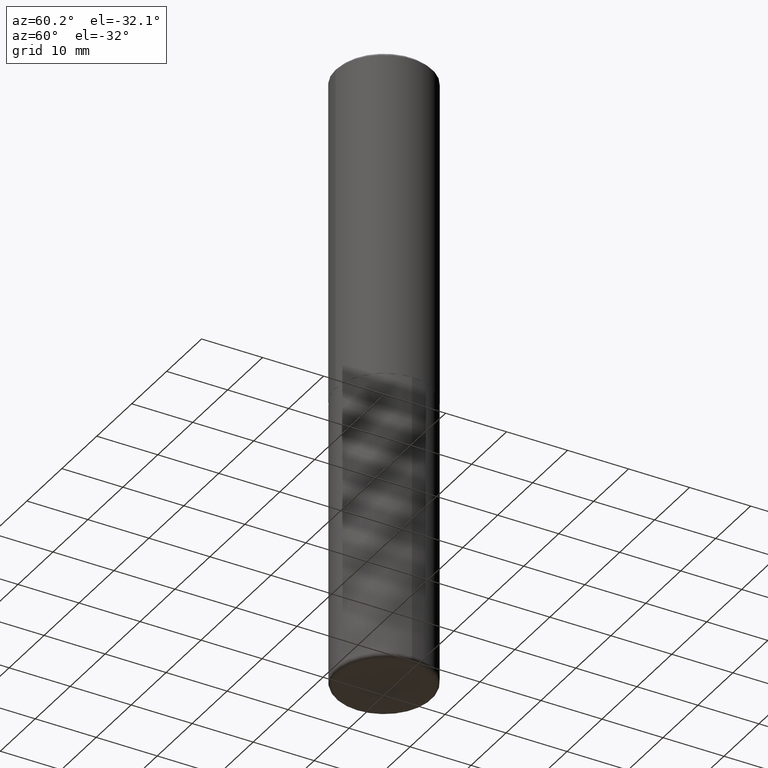
[diagram: clean part render]
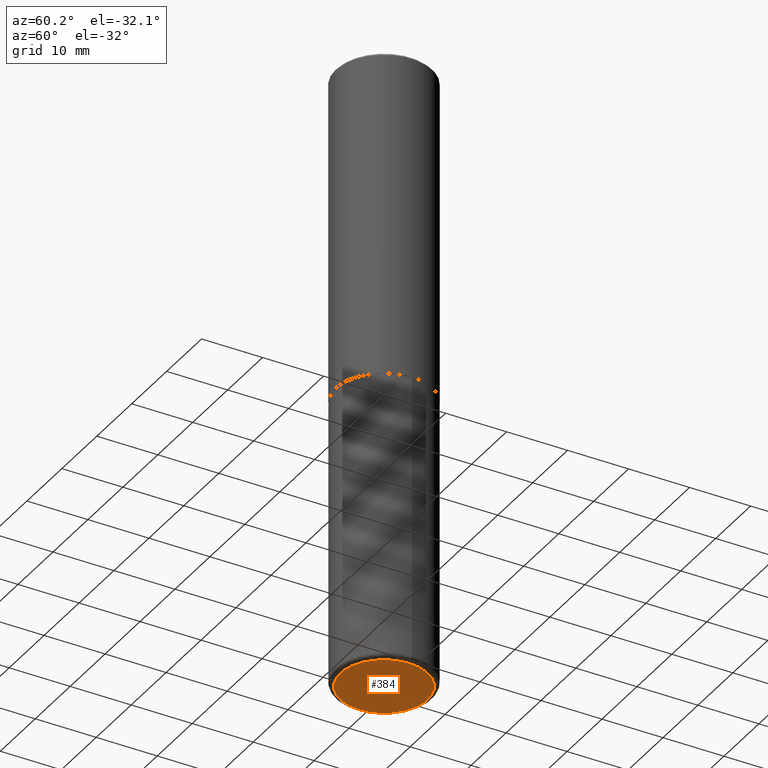
[diagram: same view with one face highlighted and labeled with its STEP entity id]
A machine part, auxiliary view. The second image highlights one B-rep face of the part: STEP entity #384.
In plain terms, the highlighted planar face has unit normal (0, -0, -1).
Its self-contained STEP definition (entity closure, byte-faithful):
#7 = CARTESIAN_POINT ( 'NONE',  ( 9.781875224740546387E-29, -1.396592535537258233E-14, -4.000000000000000000 ) ) ;
#17 = EDGE_CURVE ( 'NONE', #227, #123, #162, .T. ) ;
#34 = ORIENTED_EDGE ( 'NONE', *, *, #17, .F. ) ;
#45 = DIRECTION ( 'NONE',  ( -1.000000000000000000, 6.982962677686265922E-15, -4.876176775795935793E-29 ) ) ;
#72 = EDGE_CURVE ( 'NONE', #123, #227, #364, .T. ) ;
#84 = AXIS2_PLACEMENT_3D ( 'NONE', #7, #204, #45 ) ;
#123 = VERTEX_POINT ( 'NONE', #375 ) ;
#162 = CIRCLE ( 'NONE', #216, 0.2825000000000000289 ) ;
#175 = DIRECTION ( 'NONE',  ( -2.445468806185136597E-29, 3.491481338843145583E-15, 1.000000000000000000 ) ) ;
#200 = DIRECTION ( 'NONE',  ( 1.000000000000000000, -6.982962677686269077E-15, 0.000000000000000000 ) ) ;
#204 = DIRECTION ( 'NONE',  ( 2.438088387897960049E-29, -3.491481338843145188E-15, -1.000000000000000000 ) ) ;
#216 = AXIS2_PLACEMENT_3D ( 'NONE', #365, #175, #200 ) ;
#225 = ORIENTED_EDGE ( 'NONE', *, *, #72, .F. ) ;
#227 = VERTEX_POINT ( 'NONE', #403 ) ;
#229 = CARTESIAN_POINT ( 'NONE',  ( 9.781875224740546387E-29, -1.396592535537258233E-14, -4.000000000000000000 ) ) ;
#230 = PLANE ( 'NONE',  #84 ) ;
#248 = EDGE_LOOP ( 'NONE', ( #34, #225 ) ) ;
#292 = DIRECTION ( 'NONE',  ( 1.000000000000000000, -6.982962677686269077E-15, 0.000000000000000000 ) ) ;
#358 = FACE_OUTER_BOUND ( 'NONE', #248, .T. ) ;
#364 = CIRCLE ( 'NONE', #389, 0.2825000000000000289 ) ;
#365 = CARTESIAN_POINT ( 'NONE',  ( 9.781875224740546387E-29, -1.396592535537258233E-14, -4.000000000000000000 ) ) ;
#375 = CARTESIAN_POINT ( 'NONE',  ( -0.2825000000000000289, -1.179968849640363848E-14, -4.000000000000000000 ) ) ;
#384 = ADVANCED_FACE ( 'NONE', ( #358 ), #230, .T. ) ;
#389 = AXIS2_PLACEMENT_3D ( 'NONE', #229, #394, #292 ) ;
#394 = DIRECTION ( 'NONE',  ( -2.445468806185136597E-29, 3.491481338843145583E-15, 1.000000000000000000 ) ) ;
#403 = CARTESIAN_POINT ( 'NONE',  ( 0.2825000000000000289, -1.593861231181895394E-14, -4.000000000000000000 ) ) ;